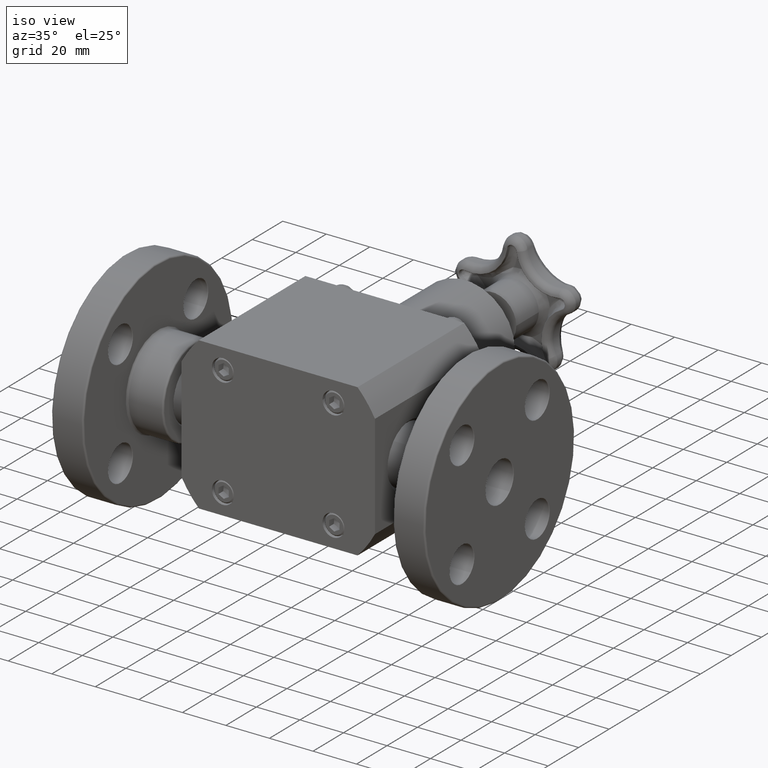
[diagram: clean part render]
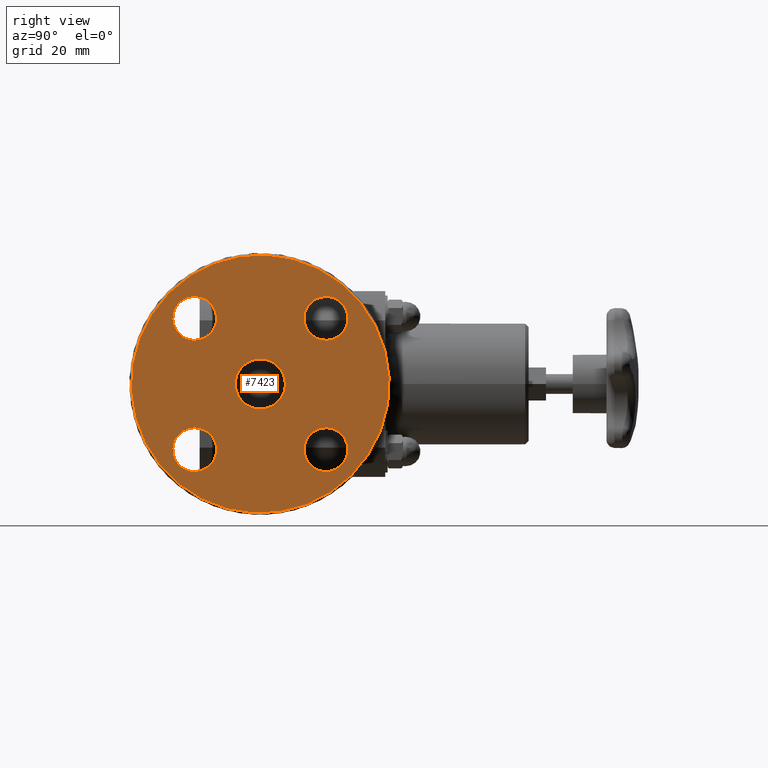
[diagram: tour spotlight — one face highlighted and labeled with its STEP entity id]
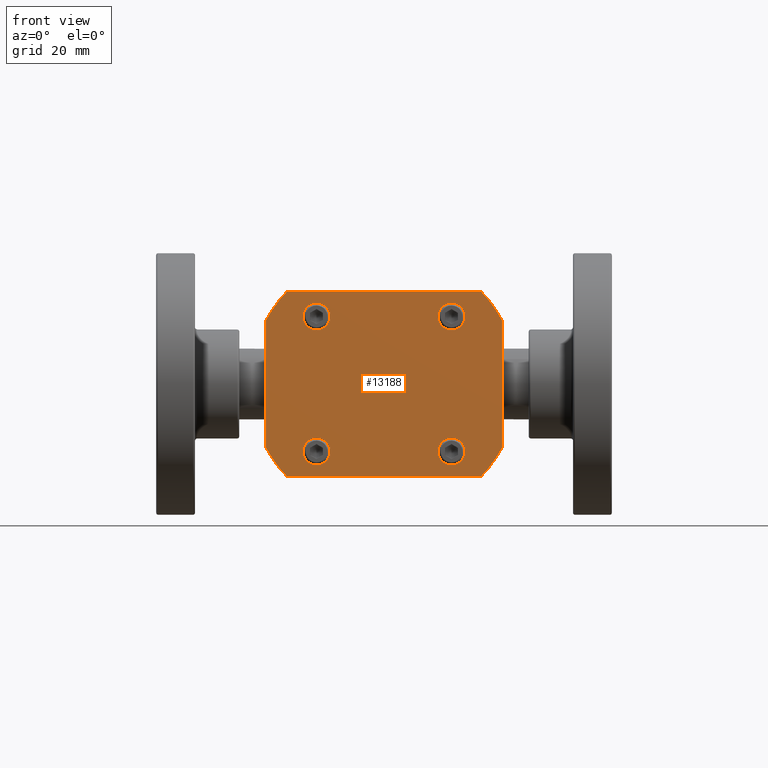
[diagram: tour spotlight — one face highlighted and labeled with its STEP entity id]
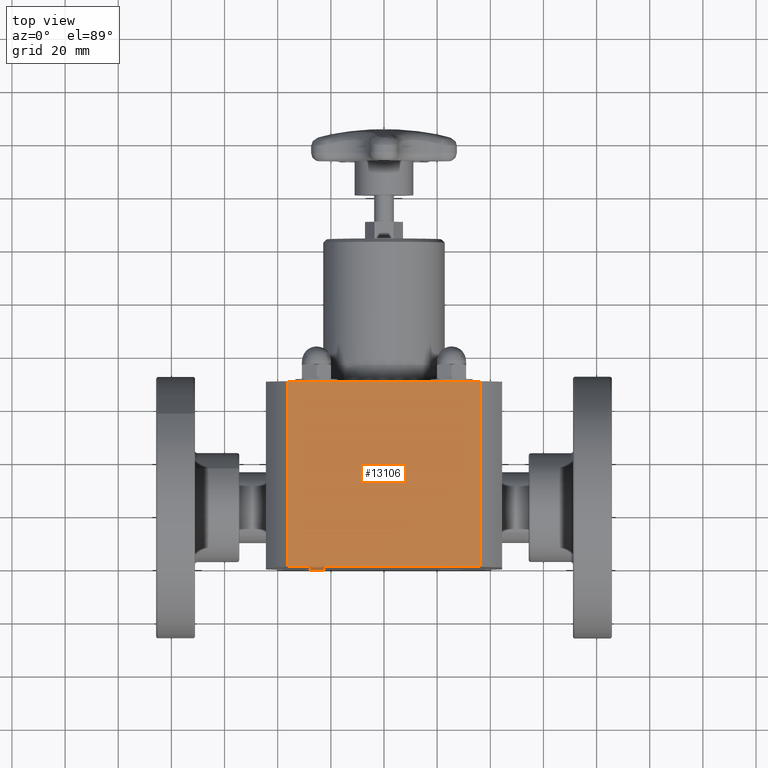
[diagram: tour spotlight — one face highlighted and labeled with its STEP entity id]
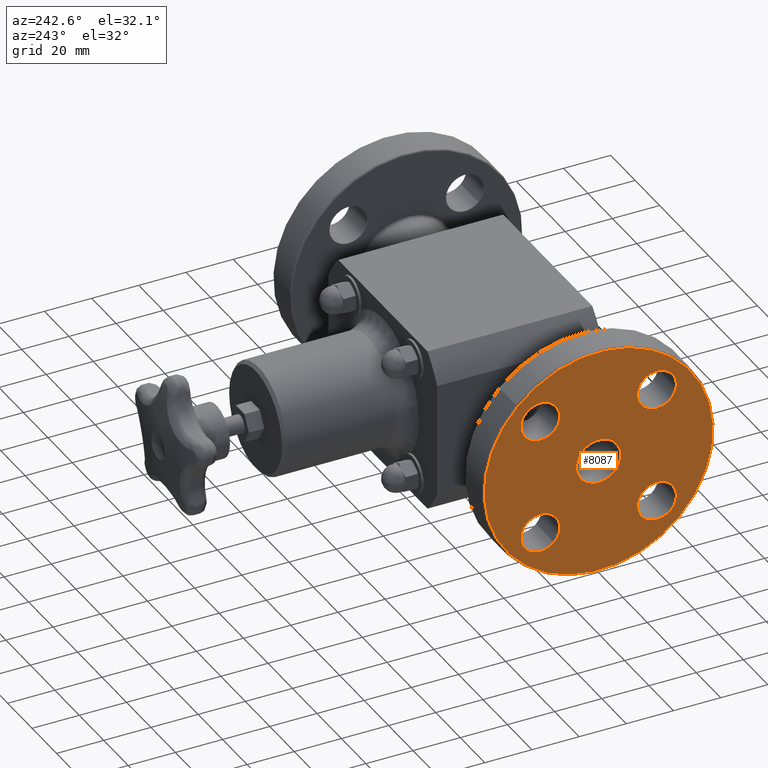
[diagram: tour spotlight — one face highlighted and labeled with its STEP entity id]
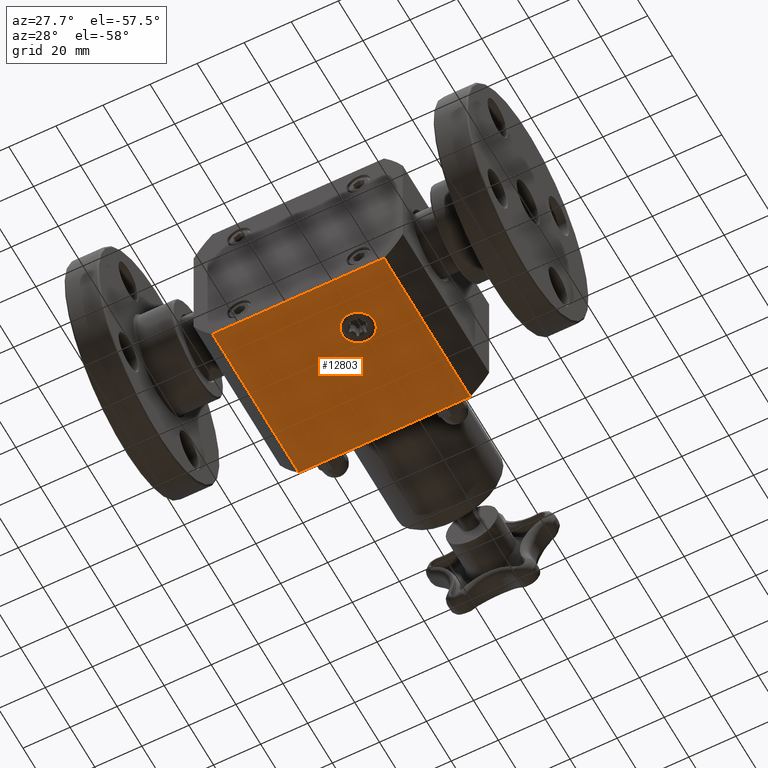
[diagram: tour spotlight — one face highlighted and labeled with its STEP entity id]
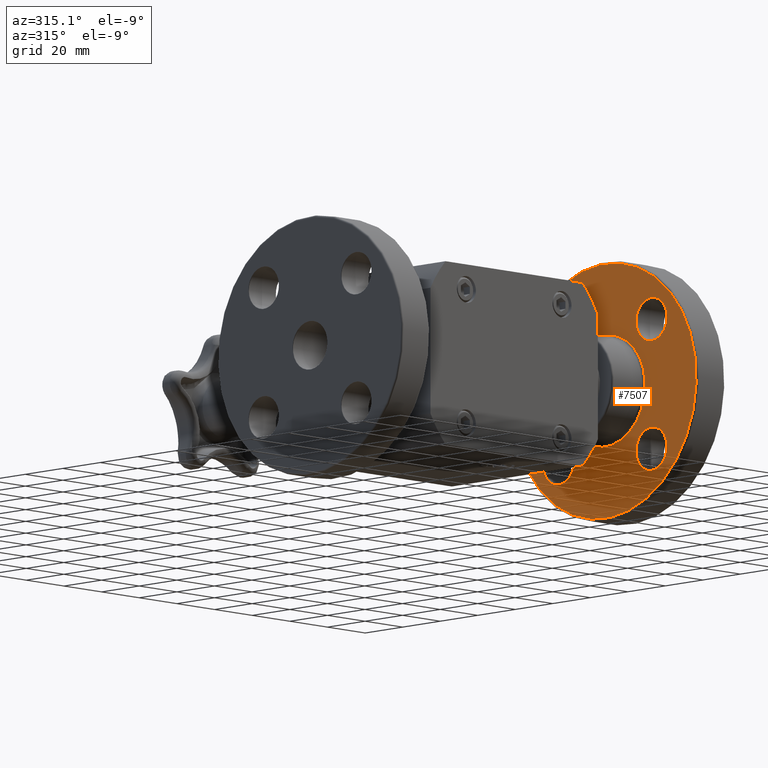
[diagram: tour spotlight — one face highlighted and labeled with its STEP entity id]
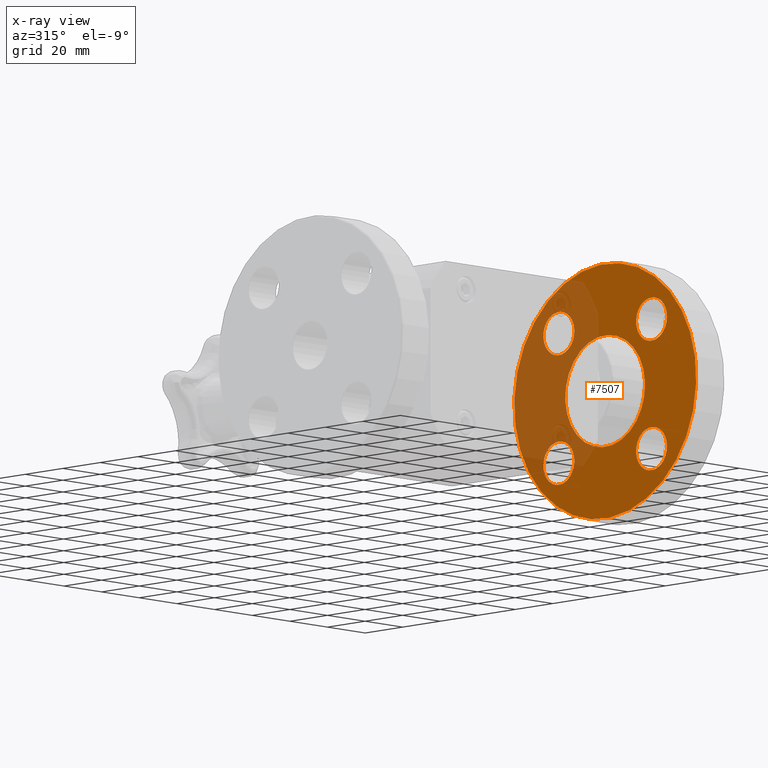
[diagram: x-ray of the same camera — body ghosted, this tour face saturated]
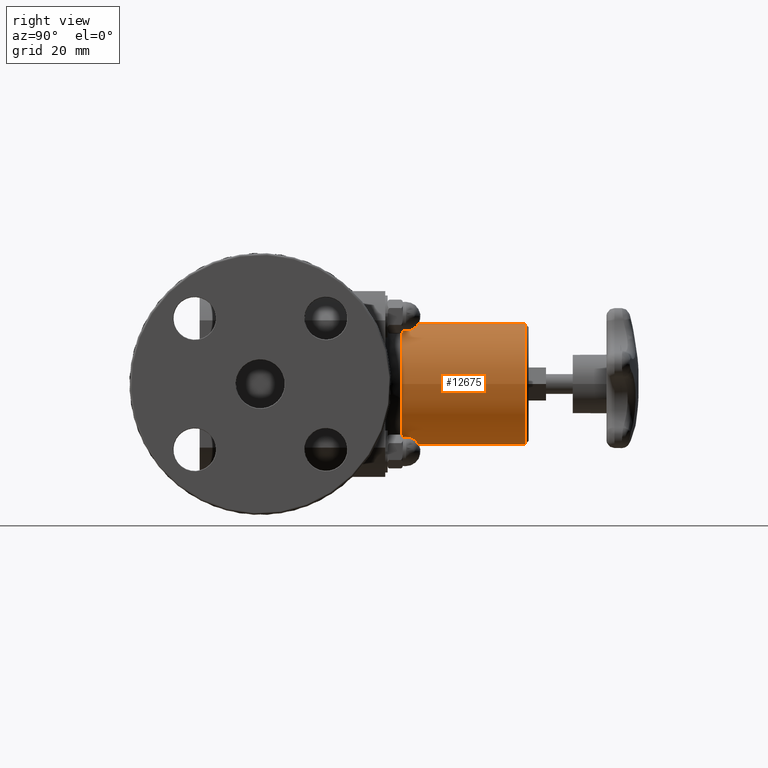
[diagram: tour spotlight — one face highlighted and labeled with its STEP entity id]
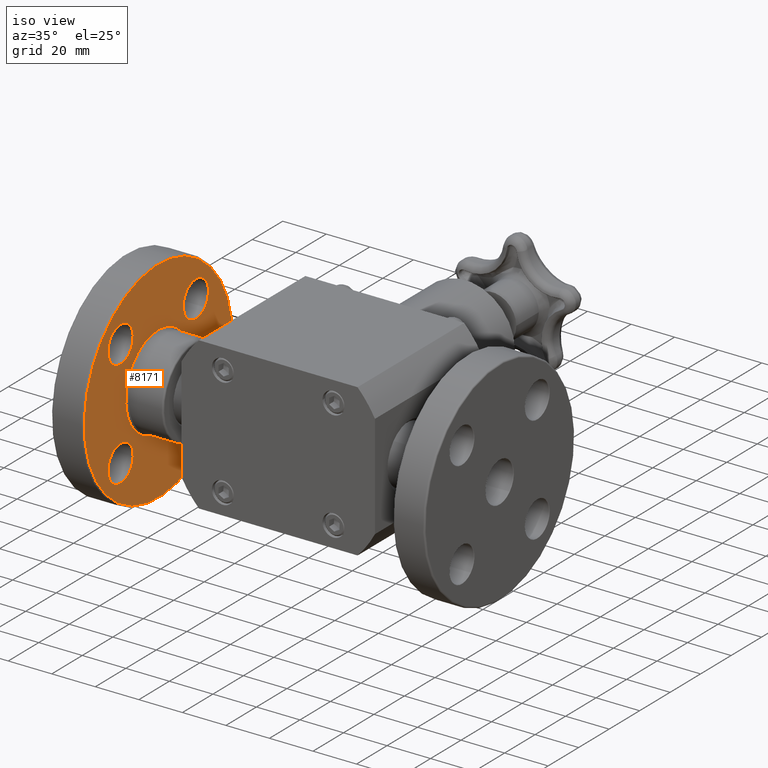
[diagram: tour spotlight — one face highlighted and labeled with its STEP entity id]
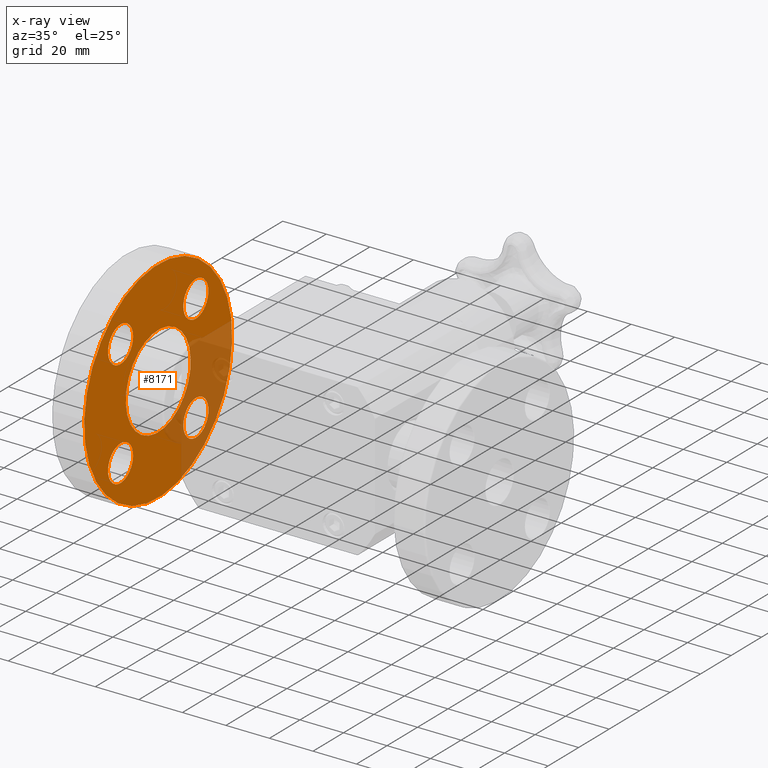
[diagram: x-ray of the same camera — body ghosted, this tour face saturated]
A machine part: a face-by-face anatomy tour. The part has 415 B-rep faces; the first image is the clean iso view, then the 8 largest visible faces are spotlighted one at a time (largest first), each with its STEP entity span.

Face 1 — right view, entity #7423. In plain terms, the highlighted planar face has unit normal (1, 0, 0).
Definition (entity closure, byte-faithful):
#7317=CARTESIAN_POINT('',(3.375000000000002,2.250573952066304,-1.350573952066304));
#7318=VERTEX_POINT('',#7317);
#7319=CARTESIAN_POINT('',(3.375000000000000,0.899999999999999,3.653438E-015));
#7320=DIRECTION('',(-1.0,8.496505E-016,-8.496505E-016));
#7321=DIRECTION('',(-1.201587E-015,-0.707106781186547,0.707106781186548));
#7322=AXIS2_PLACEMENT_3D('',#7319,#7320,#7321);
#7323=CIRCLE('',#7322,1.910000000000000);
#7324=EDGE_CURVE('',#7318,#7318,#7323,.T.);
#7360=CARTESIAN_POINT('',(3.375000000000001,1.713526351755121,-0.813526351755120));
#7361=DIRECTION('',(1.0,0.0,0.0));
#7362=DIRECTION('',(0.0,-0.707106781186548,-0.707106781186547));
#7363=AXIS2_PLACEMENT_3D('',#7360,#7361,#7362);
#7364=PLANE('',#7363);
#7365=ORIENTED_EDGE('',*,*,#7324,.F.);
#7366=EDGE_LOOP('',(#7365));
#7367=FACE_OUTER_BOUND('',#7366,.T.);
#7368=CARTESIAN_POINT('',(3.374999999999998,-0.302081528017131,0.742462120245880));
#7369=VERTEX_POINT('',#7368);
#7370=CARTESIAN_POINT('',(3.374999999999998,-0.072271824131503,0.972271824131507));
#7371=DIRECTION('',(1.0,6.415435E-016,6.415435E-016));
#7372=DIRECTION('',(-9.072795E-016,0.707106781186548,0.707106781186547));
#7373=AXIS2_PLACEMENT_3D('',#7370,#7371,#7372);
#7374=CIRCLE('',#7373,0.325000000000000);
#7375=EDGE_CURVE('',#7369,#7369,#7374,.T.);
#7376=ORIENTED_EDGE('',*,*,#7375,.F.);
#7377=EDGE_LOOP('',(#7376));
#7378=FACE_BOUND('',#7377,.T.);
#7379=CARTESIAN_POINT('',(3.374999999999998,1.642462120245875,1.202081528017134));
#7380=VERTEX_POINT('',#7379);
#7381=CARTESIAN_POINT('',(3.374999999999999,1.872271824131503,0.972271824131506));
#7382=DIRECTION('',(1.0,-8.496505E-016,8.496505E-016));
#7383=DIRECTION('',(1.201587E-015,0.707106781186547,-0.707106781186548));
#7384=AXIS2_PLACEMENT_3D('',#7381,#7382,#7383);
#7385=CIRCLE('',#7384,0.325000000000000);
#7386=EDGE_CURVE('',#7380,#7380,#7385,.T.);
#7387=ORIENTED_EDGE('',*,*,#7386,.F.);
#7388=EDGE_LOOP('',(#7387));
#7389=FACE_BOUND('',#7388,.T.);
#7390=CARTESIAN_POINT('',(3.375000000000001,2.102081528017129,-0.742462120245873));
#7391=VERTEX_POINT('',#7390);
#7392=CARTESIAN_POINT('',(3.375000000000001,1.872271824131501,-0.972271824131500));
#7393=DIRECTION('',(1.0,6.415435E-016,6.415435E-016));
#7394=DIRECTION('',(9.072795E-016,-0.707106781186548,-0.707106781186547));
#7395=AXIS2_PLACEMENT_3D('',#7392,#7393,#7394);
#7396=CIRCLE('',#7395,0.325000000000000);
#7397=EDGE_CURVE('',#7391,#7391,#7396,.T.);
#7398=ORIENTED_EDGE('',*,*,#7397,.F.);
#7399=EDGE_LOOP('',(#7398));
#7400=FACE_BOUND('',#7399,.T.);
#7401=CARTESIAN_POINT('',(3.375000000000000,1.162336615820208,-0.262336615820206));
#7402=VERTEX_POINT('',#7401);
#7403=CARTESIAN_POINT('',(3.375000000000000,0.899999999999999,3.653438E-015));
#7404=DIRECTION('',(1.000000000000000,-8.496505E-016,8.496505E-016));
#7405=DIRECTION('',(-1.201587E-015,-0.707106781186547,0.707106781186548));
#7406=AXIS2_PLACEMENT_3D('',#7403,#7404,#7405);
#7407=CIRCLE('',#7406,0.371000000000000);
#7408=EDGE_CURVE('',#7402,#7402,#7407,.T.);
#7409=ORIENTED_EDGE('',*,*,#7408,.F.);
#7410=EDGE_LOOP('',(#7409));
#7411=FACE_BOUND('',#7410,.T.);
#7412=CARTESIAN_POINT('',(3.375000000000001,0.157537879754123,-1.202081528017127));
#7413=VERTEX_POINT('',#7412);
#7414=CARTESIAN_POINT('',(3.375000000000001,-0.072271824131505,-0.972271824131498));
#7415=DIRECTION('',(1.0,-8.496505E-016,8.496505E-016));
#7416=DIRECTION('',(-1.201587E-015,-0.707106781186547,0.707106781186548));
#7417=AXIS2_PLACEMENT_3D('',#7414,#7415,#7416);
#7418=CIRCLE('',#7417,0.325000000000000);
#7419=EDGE_CURVE('',#7413,#7413,#7418,.T.);
#7420=ORIENTED_EDGE('',*,*,#7419,.F.);
#7421=EDGE_LOOP('',(#7420));
#7422=FACE_BOUND('',#7421,.T.);
#7423=ADVANCED_FACE('',(#7367,#7378,#7389,#7400,#7411,#7422),#7364,.T.);

Face 2 — front view, entity #13188. In plain terms, the highlighted planar face has unit normal (0, 1, 0).
Definition (entity closure, byte-faithful):
#12721=CARTESIAN_POINT('',(1.750000000000000,1.011657E-044,0.942155109310564));
#12722=VERTEX_POINT('',#12721);
#12729=CARTESIAN_POINT('',(1.750000000000000,1.011657E-044,-0.942155109310564));
#12730=VERTEX_POINT('',#12729);
#12731=CARTESIAN_POINT('',(1.750000000000000,1.011657E-044,-0.942155109310564));
#12732=DIRECTION('',(0.0,0.0,1.0));
#12733=VECTOR('',#12732,1.884310218621128);
#12734=LINE('',#12731,#12733);
#12735=EDGE_CURVE('',#12730,#12722,#12734,.T.);
#12775=CARTESIAN_POINT('',(1.435106703349964,8.296202E-045,-1.375000000000000));
#12776=VERTEX_POINT('',#12775);
#12783=CARTESIAN_POINT('',(-1.435106703349963,-8.296202E-045,-1.375000000000000));
#12784=VERTEX_POINT('',#12783);
#12785=CARTESIAN_POINT('',(-1.435106703349964,-8.296202E-045,-1.375000000000000));
#12786=DIRECTION('',(1.0,0.0,0.0));
#12787=VECTOR('',#12786,2.870213406699927);
#12788=LINE('',#12785,#12787);
#12789=EDGE_CURVE('',#12784,#12776,#12788,.T.);
#12849=CARTESIAN_POINT('',(-1.750000000000000,-1.011657E-044,-0.942155109310564));
#12850=VERTEX_POINT('',#12849);
#12857=CARTESIAN_POINT('',(-1.750000000000000,-1.011657E-044,0.942155109310564));
#12858=VERTEX_POINT('',#12857);
#12859=CARTESIAN_POINT('',(-1.750000000000000,-1.011657E-044,0.942155109310564));
#12860=DIRECTION('',(0.0,0.0,-1.0));
#12861=VECTOR('',#12860,1.884310218621128);
#12862=LINE('',#12859,#12861);
#12863=EDGE_CURVE('',#12858,#12850,#12862,.T.);
#12904=CARTESIAN_POINT('',(-1.000000000000000,-5.780896E-045,0.800000000000000));
#12905=VERTEX_POINT('',#12904);
#12906=CARTESIAN_POINT('',(-1.000000000000000,-5.780896E-045,1.000000000000000));
#12907=DIRECTION('',(0.0,1.0,0.0));
#12908=DIRECTION('',(0.0,0.0,-1.0));
#12909=AXIS2_PLACEMENT_3D('',#12906,#12907,#12908);
#12910=CIRCLE('',#12909,0.200000000000000);
#12911=EDGE_CURVE('',#12905,#12905,#12910,.T.);
#12945=CARTESIAN_POINT('',(-0.800000000000000,-4.624717E-045,-1.000000000000000));
#12946=VERTEX_POINT('',#12945);
#12947=CARTESIAN_POINT('',(-1.000000000000000,-5.780896E-045,-1.000000000000000));
#12948=DIRECTION('',(0.0,1.0,0.0));
#12949=DIRECTION('',(1.0,0.0,0.0));
#12950=AXIS2_PLACEMENT_3D('',#12947,#12948,#12949);
#12951=CIRCLE('',#12950,0.200000000000000);
#12952=EDGE_CURVE('',#12946,#12946,#12951,.T.);
#12994=CARTESIAN_POINT('',(1.000000000000000,5.780896E-045,-0.800000000000000));
#12995=VERTEX_POINT('',#12994);
#12996=CARTESIAN_POINT('',(1.000000000000000,5.780896E-045,-1.000000000000000));
#12997=DIRECTION('',(0.0,1.0,0.0));
#12998=DIRECTION('',(0.0,0.0,1.0));
#12999=AXIS2_PLACEMENT_3D('',#12996,#12997,#12998);
#13000=CIRCLE('',#12999,0.200000000000000);
#13001=EDGE_CURVE('',#12995,#12995,#13000,.T.);
#13043=CARTESIAN_POINT('',(0.800000000000000,4.624717E-045,1.000000000000000));
#13044=VERTEX_POINT('',#13043);
#13045=CARTESIAN_POINT('',(1.000000000000000,5.780896E-045,1.000000000000000));
#13046=DIRECTION('',(0.0,1.0,0.0));
#13047=DIRECTION('',(-1.0,0.0,0.0));
#13048=AXIS2_PLACEMENT_3D('',#13045,#13046,#13047);
#13049=CIRCLE('',#13048,0.200000000000000);
#13050=EDGE_CURVE('',#13044,#13044,#13049,.T.);
#13063=CARTESIAN_POINT('',(1.435106703349963,8.296202E-045,1.375000000000000));
#13064=VERTEX_POINT('',#13063);
#13071=CARTESIAN_POINT('',(0.0,0.0,0.0));
#13072=DIRECTION('',(3.014042E-045,-1.0,2.887804E-045));
#13073=DIRECTION('',(-0.722066265836460,-4.174190E-045,-0.691823899371069));
#13074=AXIS2_PLACEMENT_3D('',#13071,#13072,#13073);
#13075=CIRCLE('',#13074,1.987500000000000);
#13076=EDGE_CURVE('',#12722,#13064,#13075,.T.);
#13088=CARTESIAN_POINT('',(-1.435106703349963,-8.296202E-045,1.375000000000000));
#13089=VERTEX_POINT('',#13088);
#13096=CARTESIAN_POINT('',(1.435106703349963,8.296202E-045,1.375000000000000));
#13097=DIRECTION('',(-1.0,0.0,0.0));
#13098=VECTOR('',#13097,2.870213406699927);
#13099=LINE('',#13096,#13098);
#13100=EDGE_CURVE('',#13064,#13089,#13099,.T.);
#13113=CARTESIAN_POINT('',(0.0,0.0,0.0));
#13114=DIRECTION('',(4.481846E-045,-1.0,-2.412911E-045));
#13115=DIRECTION('',(0.880503144654088,5.090097E-045,-0.474040306571353));
#13116=AXIS2_PLACEMENT_3D('',#13113,#13114,#13115);
#13117=CIRCLE('',#13116,1.987500000000000);
#13118=EDGE_CURVE('',#13089,#12858,#13117,.T.);
#13131=CARTESIAN_POINT('',(0.0,0.0,0.0));
#13132=DIRECTION('',(3.014042E-045,-1.0,2.887804E-045));
#13133=DIRECTION('',(0.722066265836460,4.174190E-045,0.691823899371069));
#13134=AXIS2_PLACEMENT_3D('',#13131,#13132,#13133);
#13135=CIRCLE('',#13134,1.987500000000000);
#13136=EDGE_CURVE('',#12850,#12784,#13135,.T.);
#13149=CARTESIAN_POINT('',(0.0,0.0,0.0));
#13150=DIRECTION('',(4.481846E-045,-1.000000000000000,-2.412911E-045));
#13151=DIRECTION('',(-0.880503144654088,-5.090097E-045,0.474040306571353));
#13152=AXIS2_PLACEMENT_3D('',#13149,#13150,#13151);
#13153=CIRCLE('',#13152,1.987500000000000);
#13154=EDGE_CURVE('',#12776,#12730,#13153,.T.);
#13161=CARTESIAN_POINT('',(-8.741914E-017,-5.053609E-061,5.463696E-017));
#13162=DIRECTION('',(0.0,1.0,0.0));
#13163=DIRECTION('',(0.0,0.0,-1.0));
#13164=AXIS2_PLACEMENT_3D('',#13161,#13162,#13163);
#13165=PLANE('',#13164);
#13166=ORIENTED_EDGE('',*,*,#12735,.T.);
#13167=ORIENTED_EDGE('',*,*,#13076,.T.);
#13168=ORIENTED_EDGE('',*,*,#13100,.T.);
#13169=ORIENTED_EDGE('',*,*,#13118,.T.);
#13170=ORIENTED_EDGE('',*,*,#12863,.T.);
#13171=ORIENTED_EDGE('',*,*,#13136,.T.);
#13172=ORIENTED_EDGE('',*,*,#12789,.T.);
#13173=ORIENTED_EDGE('',*,*,#13154,.T.);
#13174=EDGE_LOOP('',(#13166,#13167,#13168,#13169,#13170,#13171,#13172,#13173));
#13175=FACE_OUTER_BOUND('',#13174,.T.);
#13176=ORIENTED_EDGE('',*,*,#12911,.T.);
#13177=EDGE_LOOP('',(#13176));
#13178=FACE_BOUND('',#13177,.T.);
#13179=ORIENTED_EDGE('',*,*,#12952,.T.);
#13180=EDGE_LOOP('',(#13179));
#13181=FACE_BOUND('',#13180,.T.);
#13182=ORIENTED_EDGE('',*,*,#13001,.T.);
#13183=EDGE_LOOP('',(#13182));
#13184=FACE_BOUND('',#13183,.T.);
#13185=ORIENTED_EDGE('',*,*,#13050,.T.);
#13186=EDGE_LOOP('',(#13185));
#13187=FACE_BOUND('',#13186,.T.);
#13188=ADVANCED_FACE('',(#13175,#13178,#13181,#13184,#13187),#13165,.F.);

Face 3 — top view, entity #13106. In plain terms, the highlighted planar face has unit normal (0, 0, 1).
Definition (entity closure, byte-faithful):
#12496=CARTESIAN_POINT('',(-1.435106703349964,2.750000000000000,1.375000000000000));
#12497=VERTEX_POINT('',#12496);
#12505=CARTESIAN_POINT('',(1.435106703349965,2.750000000000000,1.375000000000000));
#12506=VERTEX_POINT('',#12505);
#12507=CARTESIAN_POINT('',(1.435106703349965,2.750000000000000,1.375000000000000));
#12508=DIRECTION('',(-1.0,0.0,0.0));
#12509=VECTOR('',#12508,2.870213406699929);
#12510=LINE('',#12507,#12509);
#12511=EDGE_CURVE('',#12506,#12497,#12510,.T.);
#13063=CARTESIAN_POINT('',(1.435106703349963,8.296202E-045,1.375000000000000));
#13064=VERTEX_POINT('',#13063);
#13065=CARTESIAN_POINT('',(1.435106703349963,8.296202E-045,1.375000000000000));
#13066=DIRECTION('',(0.0,1.0,0.0));
#13067=VECTOR('',#13066,2.750000000000000);
#13068=LINE('',#13065,#13067);
#13069=EDGE_CURVE('',#13064,#12506,#13068,.T.);
#13083=CARTESIAN_POINT('',(1.435106703349963,8.296202E-045,1.375000000000000));
#13084=DIRECTION('',(0.0,0.0,1.0));
#13085=DIRECTION('',(1.0,0.0,0.0));
#13086=AXIS2_PLACEMENT_3D('',#13083,#13084,#13085);
#13087=PLANE('',#13086);
#13088=CARTESIAN_POINT('',(-1.435106703349963,-8.296202E-045,1.375000000000000));
#13089=VERTEX_POINT('',#13088);
#13090=CARTESIAN_POINT('',(-1.435106703349963,-8.296202E-045,1.375000000000000));
#13091=DIRECTION('',(0.0,1.0,0.0));
#13092=VECTOR('',#13091,2.750000000000000);
#13093=LINE('',#13090,#13092);
#13094=EDGE_CURVE('',#13089,#12497,#13093,.T.);
#13095=ORIENTED_EDGE('',*,*,#13094,.F.);
#13096=CARTESIAN_POINT('',(1.435106703349963,8.296202E-045,1.375000000000000));
#13097=DIRECTION('',(-1.0,0.0,0.0));
#13098=VECTOR('',#13097,2.870213406699927);
#13099=LINE('',#13096,#13098);
#13100=EDGE_CURVE('',#13064,#13089,#13099,.T.);
#13101=ORIENTED_EDGE('',*,*,#13100,.F.);
#13102=ORIENTED_EDGE('',*,*,#13069,.T.);
#13103=ORIENTED_EDGE('',*,*,#12511,.T.);
#13104=EDGE_LOOP('',(#13095,#13101,#13102,#13103));
#13105=FACE_OUTER_BOUND('',#13104,.T.);
#13106=ADVANCED_FACE('',(#13105),#13087,.T.);

Face 4 — auxiliary view, entity #8087. In plain terms, the highlighted planar face has unit normal (-1, 0, 0).
Definition (entity closure, byte-faithful):
#7981=CARTESIAN_POINT('',(-3.375000000000001,2.250573952066304,1.350573952066304));
#7982=VERTEX_POINT('',#7981);
#7983=CARTESIAN_POINT('',(-3.374999999999998,0.899999999999999,-3.529878E-015));
#7984=DIRECTION('',(1.0,9.132024E-016,9.132024E-016));
#7985=DIRECTION('',(1.291463E-015,-0.707106781186547,-0.707106781186548));
#7986=AXIS2_PLACEMENT_3D('',#7983,#7984,#7985);
#7987=CIRCLE('',#7986,1.910000000000000);
#7988=EDGE_CURVE('',#7982,#7982,#7987,.T.);
#8024=CARTESIAN_POINT('',(-3.375000000000000,1.713526351755121,0.813526351755120));
#8025=DIRECTION('',(-1.0,0.0,0.0));
#8026=DIRECTION('',(0.0,-0.707106781186548,0.707106781186547));
#8027=AXIS2_PLACEMENT_3D('',#8024,#8025,#8026);
#8028=PLANE('',#8027);
#8029=ORIENTED_EDGE('',*,*,#7988,.F.);
#8030=EDGE_LOOP('',(#8029));
#8031=FACE_OUTER_BOUND('',#8030,.T.);
#8032=CARTESIAN_POINT('',(-3.374999999999996,-0.302081528017131,-0.742462120245879));
#8033=VERTEX_POINT('',#8032);
#8034=CARTESIAN_POINT('',(-3.374999999999996,-0.072271824131503,-0.972271824131507));
#8035=DIRECTION('',(-1.0,7.004564E-016,-7.004564E-016));
#8036=DIRECTION('',(9.905949E-016,0.707106781186548,-0.707106781186547));
#8037=AXIS2_PLACEMENT_3D('',#8034,#8035,#8036);
#8038=CIRCLE('',#8037,0.325000000000000);
#8039=EDGE_CURVE('',#8033,#8033,#8038,.T.);
#8040=ORIENTED_EDGE('',*,*,#8039,.F.);
#8041=EDGE_LOOP('',(#8040));
#8042=FACE_BOUND('',#8041,.T.);
#8043=CARTESIAN_POINT('',(-3.374999999999996,1.642462120245875,-1.202081528017134));
#8044=VERTEX_POINT('',#8043);
#8045=CARTESIAN_POINT('',(-3.374999999999996,1.872271824131503,-0.972271824131506));
#8046=DIRECTION('',(-1.0,-9.132024E-016,-9.132024E-016));
#8047=DIRECTION('',(-1.291463E-015,0.707106781186547,0.707106781186548));
#8048=AXIS2_PLACEMENT_3D('',#8045,#8046,#8047);
#8049=CIRCLE('',#8048,0.325000000000000);
#8050=EDGE_CURVE('',#8044,#8044,#8049,.T.);
#8051=ORIENTED_EDGE('',*,*,#8050,.F.);
#8052=EDGE_LOOP('',(#8051));
#8053=FACE_BOUND('',#8052,.T.);
#8054=CARTESIAN_POINT('',(-3.375000000000000,2.102081528017129,0.742462120245873));
#8055=VERTEX_POINT('',#8054);
#8056=CARTESIAN_POINT('',(-3.375000000000000,1.872271824131501,0.972271824131500));
#8057=DIRECTION('',(-1.0,7.004564E-016,-7.004564E-016));
#8058=DIRECTION('',(-9.905949E-016,-0.707106781186548,0.707106781186547));
#8059=AXIS2_PLACEMENT_3D('',#8056,#8057,#8058);
#8060=CIRCLE('',#8059,0.325000000000000);
#8061=EDGE_CURVE('',#8055,#8055,#8060,.T.);
#8062=ORIENTED_EDGE('',*,*,#8061,.F.);
#8063=EDGE_LOOP('',(#8062));
#8064=FACE_BOUND('',#8063,.T.);
#8065=CARTESIAN_POINT('',(-3.374999999999999,1.162336615820208,0.262336615820206));
#8066=VERTEX_POINT('',#8065);
#8067=CARTESIAN_POINT('',(-3.374999999999998,0.899999999999999,-3.529878E-015));
#8068=DIRECTION('',(-1.000000000000000,-9.132024E-016,-9.132024E-016));
#8069=DIRECTION('',(1.291463E-015,-0.707106781186547,-0.707106781186548));
#8070=AXIS2_PLACEMENT_3D('',#8067,#8068,#8069);
#8071=CIRCLE('',#8070,0.371000000000000);
#8072=EDGE_CURVE('',#8066,#8066,#8071,.T.);
#8073=ORIENTED_EDGE('',*,*,#8072,.F.);
#8074=EDGE_LOOP('',(#8073));
#8075=FACE_BOUND('',#8074,.T.);
#8076=CARTESIAN_POINT('',(-3.375000000000000,0.157537879754123,1.202081528017127));
#8077=VERTEX_POINT('',#8076);
#8078=CARTESIAN_POINT('',(-3.375000000000000,-0.072271824131505,0.972271824131499));
#8079=DIRECTION('',(-1.0,-9.132024E-016,-9.132024E-016));
#8080=DIRECTION('',(1.291463E-015,-0.707106781186547,-0.707106781186548));
#8081=AXIS2_PLACEMENT_3D('',#8078,#8079,#8080);
#8082=CIRCLE('',#8081,0.325000000000000);
#8083=EDGE_CURVE('',#8077,#8077,#8082,.T.);
#8084=ORIENTED_EDGE('',*,*,#8083,.F.);
#8085=EDGE_LOOP('',(#8084));
#8086=FACE_BOUND('',#8085,.T.);
#8087=ADVANCED_FACE('',(#8031,#8042,#8053,#8064,#8075,#8086),#8028,.T.);

Face 5 — auxiliary view, entity #12803. In plain terms, the highlighted planar face has unit normal (0, 0, -1).
Definition (entity closure, byte-faithful):
#12530=CARTESIAN_POINT('',(1.435106703349965,2.750000000000000,-1.375000000000000));
#12531=VERTEX_POINT('',#12530);
#12539=CARTESIAN_POINT('',(-1.435106703349963,2.750000000000000,-1.375000000000000));
#12540=VERTEX_POINT('',#12539);
#12541=CARTESIAN_POINT('',(-1.435106703349963,2.750000000000000,-1.375000000000000));
#12542=DIRECTION('',(1.0,0.0,0.0));
#12543=VECTOR('',#12542,2.870213406699928);
#12544=LINE('',#12541,#12543);
#12545=EDGE_CURVE('',#12540,#12531,#12544,.T.);
#12758=CARTESIAN_POINT('',(0.530000000000000,1.168750000000000,-1.375000000000000));
#12759=VERTEX_POINT('',#12758);
#12760=CARTESIAN_POINT('',(0.530000000000000,0.900000000000000,-1.375000000000000));
#12761=DIRECTION('',(0.0,0.0,-1.0));
#12762=DIRECTION('',(0.0,-1.0,0.0));
#12763=AXIS2_PLACEMENT_3D('',#12760,#12761,#12762);
#12764=CIRCLE('',#12763,0.268750000000000);
#12765=EDGE_CURVE('',#12759,#12759,#12764,.T.);
#12770=CARTESIAN_POINT('',(-1.435106703349963,-8.296202E-045,-1.375000000000000));
#12771=DIRECTION('',(0.0,0.0,-1.0));
#12772=DIRECTION('',(-1.0,0.0,0.0));
#12773=AXIS2_PLACEMENT_3D('',#12770,#12771,#12772);
#12774=PLANE('',#12773);
#12775=CARTESIAN_POINT('',(1.435106703349964,8.296202E-045,-1.375000000000000));
#12776=VERTEX_POINT('',#12775);
#12777=CARTESIAN_POINT('',(1.435106703349964,8.296202E-045,-1.375000000000000));
#12778=DIRECTION('',(0.0,1.0,0.0));
#12779=VECTOR('',#12778,2.750000000000000);
#12780=LINE('',#12777,#12779);
#12781=EDGE_CURVE('',#12776,#12531,#12780,.T.);
#12782=ORIENTED_EDGE('',*,*,#12781,.F.);
#12783=CARTESIAN_POINT('',(-1.435106703349963,-8.296202E-045,-1.375000000000000));
#12784=VERTEX_POINT('',#12783);
#12785=CARTESIAN_POINT('',(-1.435106703349964,-8.296202E-045,-1.375000000000000));
#12786=DIRECTION('',(1.0,0.0,0.0));
#12787=VECTOR('',#12786,2.870213406699927);
#12788=LINE('',#12785,#12787);
#12789=EDGE_CURVE('',#12784,#12776,#12788,.T.);
#12790=ORIENTED_EDGE('',*,*,#12789,.F.);
#12791=CARTESIAN_POINT('',(-1.435106703349963,-8.296202E-045,-1.375000000000000));
#12792=DIRECTION('',(0.0,1.0,0.0));
#12793=VECTOR('',#12792,2.750000000000000);
#12794=LINE('',#12791,#12793);
#12795=EDGE_CURVE('',#12784,#12540,#12794,.T.);
#12796=ORIENTED_EDGE('',*,*,#12795,.T.);
#12797=ORIENTED_EDGE('',*,*,#12545,.T.);
#12798=EDGE_LOOP('',(#12782,#12790,#12796,#12797));
#12799=FACE_OUTER_BOUND('',#12798,.T.);
#12800=ORIENTED_EDGE('',*,*,#12765,.F.);
#12801=EDGE_LOOP('',(#12800));
#12802=FACE_BOUND('',#12801,.T.);
#12803=ADVANCED_FACE('',(#12799,#12802),#12774,.T.);

Face 6 — auxiliary view, entity #7507. An x-ray twin of the same camera follows (body ghosted, this face saturated) — the face is partly hidden behind the body. In plain terms, the highlighted planar face has unit normal (-1, 0, 0).
Definition (entity closure, byte-faithful):
#7432=CARTESIAN_POINT('',(2.800000000000002,2.250573952066305,-1.350573952066304));
#7433=VERTEX_POINT('',#7432);
#7434=CARTESIAN_POINT('',(2.799999999999999,0.899999999999999,2.796002E-015));
#7435=DIRECTION('',(1.0,-8.496505E-016,8.496505E-016));
#7436=DIRECTION('',(-1.201587E-015,-0.707106781186547,0.707106781186548));
#7437=AXIS2_PLACEMENT_3D('',#7434,#7435,#7436);
#7438=CIRCLE('',#7437,1.910000000000000);
#7439=EDGE_CURVE('',#7433,#7433,#7438,.T.);
#7444=CARTESIAN_POINT('',(2.800000000000001,1.871564717350315,-0.971564717350315));
#7445=DIRECTION('',(-1.0,0.0,0.0));
#7446=DIRECTION('',(0.0,0.707106781186548,0.707106781186547));
#7447=AXIS2_PLACEMENT_3D('',#7444,#7445,#7446);
#7448=PLANE('',#7447);
#7449=ORIENTED_EDGE('',*,*,#7439,.F.);
#7450=EDGE_LOOP('',(#7449));
#7451=FACE_OUTER_BOUND('',#7450,.T.);
#7452=CARTESIAN_POINT('',(2.800000000000001,1.492555482634326,-0.592555482634325));
#7453=VERTEX_POINT('',#7452);
#7454=CARTESIAN_POINT('',(2.799999999999999,0.899999999999999,2.796002E-015));
#7455=DIRECTION('',(-1.000000000000000,8.496505E-016,-8.496505E-016));
#7456=DIRECTION('',(-1.201587E-015,-0.707106781186547,0.707106781186548));
#7457=AXIS2_PLACEMENT_3D('',#7454,#7455,#7456);
#7458=CIRCLE('',#7457,0.838000000000000);
#7459=EDGE_CURVE('',#7453,#7453,#7458,.T.);
#7460=ORIENTED_EDGE('',*,*,#7459,.F.);
#7461=EDGE_LOOP('',(#7460));
#7462=FACE_BOUND('',#7461,.T.);
#7463=CARTESIAN_POINT('',(2.799999999999998,-0.302081528017131,0.742462120245879));
#7464=VERTEX_POINT('',#7463);
#7465=CARTESIAN_POINT('',(2.799999999999998,-0.072271824131503,0.972271824131507));
#7466=DIRECTION('',(-1.0,-6.415435E-016,-6.415435E-016));
#7467=DIRECTION('',(-9.072795E-016,0.707106781186548,0.707106781186547));
#7468=AXIS2_PLACEMENT_3D('',#7465,#7466,#7467);
#7469=CIRCLE('',#7468,0.325000000000000);
#7470=EDGE_CURVE('',#7464,#7464,#7469,.T.);
#7471=ORIENTED_EDGE('',*,*,#7470,.F.);
#7472=EDGE_LOOP('',(#7471));
#7473=FACE_BOUND('',#7472,.T.);
#7474=CARTESIAN_POINT('',(2.799999999999998,1.642462120245875,1.202081528017133));
#7475=VERTEX_POINT('',#7474);
#7476=CARTESIAN_POINT('',(2.799999999999999,1.872271824131503,0.972271824131505));
#7477=DIRECTION('',(-1.0,8.496505E-016,-8.496505E-016));
#7478=DIRECTION('',(1.201587E-015,0.707106781186547,-0.707106781186548));
#7479=AXIS2_PLACEMENT_3D('',#7476,#7477,#7478);
#7480=CIRCLE('',#7479,0.325000000000000);
#7481=EDGE_CURVE('',#7475,#7475,#7480,.T.);
#7482=ORIENTED_EDGE('',*,*,#7481,.F.);
#7483=EDGE_LOOP('',(#7482));
#7484=FACE_BOUND('',#7483,.T.);
#7485=CARTESIAN_POINT('',(2.800000000000001,2.102081528017130,-0.742462120245873));
#7486=VERTEX_POINT('',#7485);
#7487=CARTESIAN_POINT('',(2.800000000000001,1.872271824131502,-0.972271824131501));
#7488=DIRECTION('',(-1.0,-6.415435E-016,-6.415435E-016));
#7489=DIRECTION('',(9.072795E-016,-0.707106781186548,-0.707106781186547));
#7490=AXIS2_PLACEMENT_3D('',#7487,#7488,#7489);
#7491=CIRCLE('',#7490,0.325000000000000);
#7492=EDGE_CURVE('',#7486,#7486,#7491,.T.);
#7493=ORIENTED_EDGE('',*,*,#7492,.F.);
#7494=EDGE_LOOP('',(#7493));
#7495=FACE_BOUND('',#7494,.T.);
#7496=CARTESIAN_POINT('',(2.800000000000001,0.157537879754123,-1.202081528017128));
#7497=VERTEX_POINT('',#7496);
#7498=CARTESIAN_POINT('',(2.800000000000001,-0.072271824131505,-0.972271824131499));
#7499=DIRECTION('',(-1.0,8.496505E-016,-8.496505E-016));
#7500=DIRECTION('',(-1.201587E-015,-0.707106781186547,0.707106781186548));
#7501=AXIS2_PLACEMENT_3D('',#7498,#7499,#7500);
#7502=CIRCLE('',#7501,0.325000000000000);
#7503=EDGE_CURVE('',#7497,#7497,#7502,.T.);
#7504=ORIENTED_EDGE('',*,*,#7503,.F.);
#7505=EDGE_LOOP('',(#7504));
#7506=FACE_BOUND('',#7505,.T.);
#7507=ADVANCED_FACE('',(#7451,#7462,#7473,#7484,#7495,#7506),#7448,.T.);

Face 7 — right view, entity #12675. In plain terms, the highlighted cylindrical surface (bore or boss wall) has radius 22.86 mm, axis along (0, -1, 0).
Definition (entity closure, byte-faithful):
#12641=CARTESIAN_POINT('',(0.900000000000000,4.825000000000000,4.395934E-016));
#12642=VERTEX_POINT('',#12641);
#12643=CARTESIAN_POINT('',(5.245148E-016,4.825000000000000,3.496765E-016));
#12644=DIRECTION('',(0.0,-1.0,0.0));
#12645=DIRECTION('',(1.0,0.0,0.0));
#12646=AXIS2_PLACEMENT_3D('',#12643,#12644,#12645);
#12647=CIRCLE('',#12646,0.900000000000000);
#12648=EDGE_CURVE('',#12642,#12642,#12647,.T.);
#12656=CARTESIAN_POINT('',(5.245148E-016,3.912500000000000,3.496765E-016));
#12657=DIRECTION('',(5.780896E-045,-1.0,1.085983E-060));
#12658=DIRECTION('',(1.0,0.0,0.0));
#12659=AXIS2_PLACEMENT_3D('',#12656,#12657,#12658);
#12660=CYLINDRICAL_SURFACE('',#12659,0.900000000000000);
#12661=CARTESIAN_POINT('',(0.900000000000001,3.0,4.395934E-016));
#12662=VERTEX_POINT('',#12661);
#12663=CARTESIAN_POINT('',(5.245148E-016,3.0,3.496765E-016));
#12664=DIRECTION('',(0.0,-1.0,0.0));
#12665=DIRECTION('',(1.0,0.0,0.0));
#12666=AXIS2_PLACEMENT_3D('',#12663,#12664,#12665);
#12667=CIRCLE('',#12666,0.900000000000000);
#12668=EDGE_CURVE('',#12662,#12662,#12667,.T.);
#12669=ORIENTED_EDGE('',*,*,#12668,.F.);
#12670=EDGE_LOOP('',(#12669));
#12671=FACE_OUTER_BOUND('',#12670,.T.);
#12672=ORIENTED_EDGE('',*,*,#12648,.T.);
#12673=EDGE_LOOP('',(#12672));
#12674=FACE_BOUND('',#12673,.T.);
#12675=ADVANCED_FACE('',(#12671,#12674),#12660,.T.);

Face 8 — iso view, entity #8171. An x-ray twin of the same camera follows (body ghosted, this face saturated) — the face is partly hidden behind the body. In plain terms, the highlighted planar face has unit normal (1, 0, 0).
Definition (entity closure, byte-faithful):
#8096=CARTESIAN_POINT('',(-2.800000000000001,2.250573952066305,1.350573952066304));
#8097=VERTEX_POINT('',#8096);
#8098=CARTESIAN_POINT('',(-2.799999999999998,0.899999999999999,-2.602025E-015));
#8099=DIRECTION('',(-1.0,-9.132024E-016,-9.132024E-016));
#8100=DIRECTION('',(1.291463E-015,-0.707106781186547,-0.707106781186548));
#8101=AXIS2_PLACEMENT_3D('',#8098,#8099,#8100);
#8102=CIRCLE('',#8101,1.910000000000000);
#8103=EDGE_CURVE('',#8097,#8097,#8102,.T.);
#8108=CARTESIAN_POINT('',(-2.800000000000000,1.871564717350315,0.971564717350315));
#8109=DIRECTION('',(1.0,0.0,0.0));
#8110=DIRECTION('',(0.0,0.707106781186548,-0.707106781186547));
#8111=AXIS2_PLACEMENT_3D('',#8108,#8109,#8110);
#8112=PLANE('',#8111);
#8113=ORIENTED_EDGE('',*,*,#8103,.F.);
#8114=EDGE_LOOP('',(#8113));
#8115=FACE_OUTER_BOUND('',#8114,.T.);
#8116=CARTESIAN_POINT('',(-2.799999999999999,1.492555482634326,0.592555482634325));
#8117=VERTEX_POINT('',#8116);
#8118=CARTESIAN_POINT('',(-2.799999999999998,0.899999999999999,-2.602025E-015));
#8119=DIRECTION('',(1.000000000000000,9.132024E-016,9.132024E-016));
#8120=DIRECTION('',(1.291463E-015,-0.707106781186547,-0.707106781186548));
#8121=AXIS2_PLACEMENT_3D('',#8118,#8119,#8120);
#8122=CIRCLE('',#8121,0.838000000000000);
#8123=EDGE_CURVE('',#8117,#8117,#8122,.T.);
#8124=ORIENTED_EDGE('',*,*,#8123,.F.);
#8125=EDGE_LOOP('',(#8124));
#8126=FACE_BOUND('',#8125,.T.);
#8127=CARTESIAN_POINT('',(-2.799999999999997,-0.302081528017131,-0.742462120245878));
#8128=VERTEX_POINT('',#8127);
#8129=CARTESIAN_POINT('',(-2.799999999999997,-0.072271824131503,-0.972271824131506));
#8130=DIRECTION('',(1.0,-7.004564E-016,7.004564E-016));
#8131=DIRECTION('',(9.905949E-016,0.707106781186548,-0.707106781186547));
#8132=AXIS2_PLACEMENT_3D('',#8129,#8130,#8131);
#8133=CIRCLE('',#8132,0.325000000000000);
#8134=EDGE_CURVE('',#8128,#8128,#8133,.T.);
#8135=ORIENTED_EDGE('',*,*,#8134,.F.);
#8136=EDGE_LOOP('',(#8135));
#8137=FACE_BOUND('',#8136,.T.);
#8138=CARTESIAN_POINT('',(-2.799999999999996,1.642462120245875,-1.202081528017133));
#8139=VERTEX_POINT('',#8138);
#8140=CARTESIAN_POINT('',(-2.799999999999997,1.872271824131503,-0.972271824131505));
#8141=DIRECTION('',(1.0,9.132024E-016,9.132024E-016));
#8142=DIRECTION('',(-1.291463E-015,0.707106781186547,0.707106781186548));
#8143=AXIS2_PLACEMENT_3D('',#8140,#8141,#8142);
#8144=CIRCLE('',#8143,0.325000000000000);
#8145=EDGE_CURVE('',#8139,#8139,#8144,.T.);
#8146=ORIENTED_EDGE('',*,*,#8145,.F.);
#8147=EDGE_LOOP('',(#8146));
#8148=FACE_BOUND('',#8147,.T.);
#8149=CARTESIAN_POINT('',(-2.799999999999999,2.102081528017130,0.742462120245873));
#8150=VERTEX_POINT('',#8149);
#8151=CARTESIAN_POINT('',(-2.800000000000000,1.872271824131502,0.972271824131501));
#8152=DIRECTION('',(1.0,-7.004564E-016,7.004564E-016));
#8153=DIRECTION('',(-9.905949E-016,-0.707106781186548,0.707106781186547));
#8154=AXIS2_PLACEMENT_3D('',#8151,#8152,#8153);
#8155=CIRCLE('',#8154,0.325000000000000);
#8156=EDGE_CURVE('',#8150,#8150,#8155,.T.);
#8157=ORIENTED_EDGE('',*,*,#8156,.F.);
#8158=EDGE_LOOP('',(#8157));
#8159=FACE_BOUND('',#8158,.T.);
#8160=CARTESIAN_POINT('',(-2.800000000000000,0.157537879754123,1.202081528017128));
#8161=VERTEX_POINT('',#8160);
#8162=CARTESIAN_POINT('',(-2.799999999999999,-0.072271824131504,0.972271824131500));
#8163=DIRECTION('',(1.0,9.132024E-016,9.132024E-016));
#8164=DIRECTION('',(1.291463E-015,-0.707106781186547,-0.707106781186548));
#8165=AXIS2_PLACEMENT_3D('',#8162,#8163,#8164);
#8166=CIRCLE('',#8165,0.325000000000000);
#8167=EDGE_CURVE('',#8161,#8161,#8166,.T.);
#8168=ORIENTED_EDGE('',*,*,#8167,.F.);
#8169=EDGE_LOOP('',(#8168));
#8170=FACE_BOUND('',#8169,.T.);
#8171=ADVANCED_FACE('',(#8115,#8126,#8137,#8148,#8159,#8170),#8112,.T.);